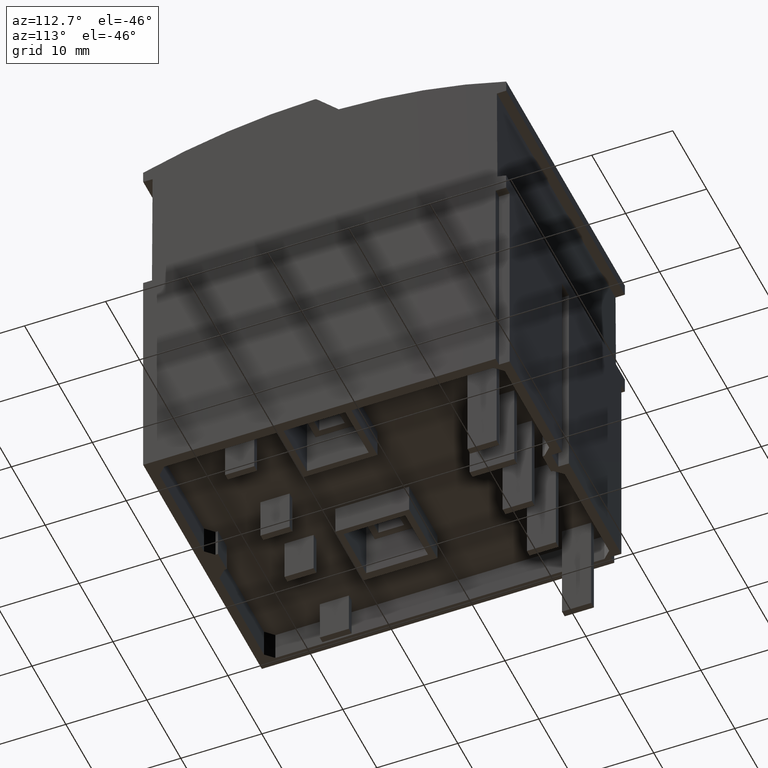
[diagram: clean part render]
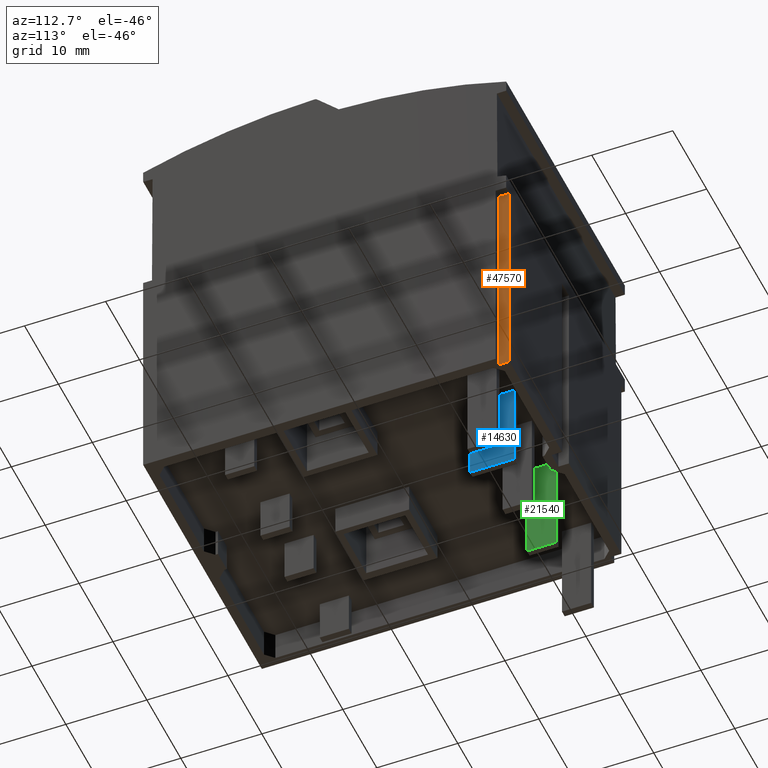
[diagram: same view with three faces highlighted in distinct colors, each labeled with its STEP entity id]
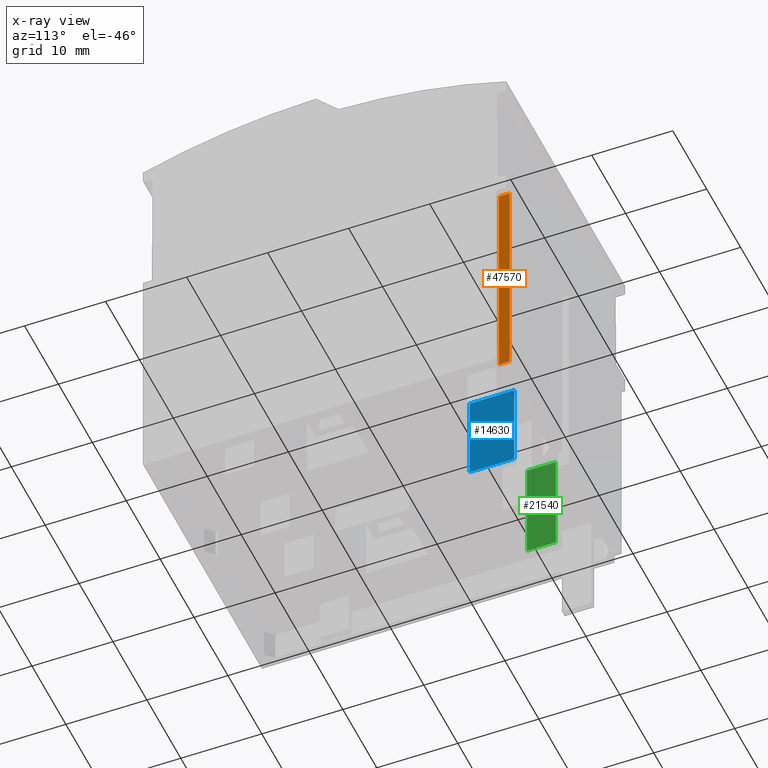
[diagram: x-ray of the same camera — body ghosted, the three highlighted faces saturated]
A machine part, auxiliary view with three faces highlighted in distinct colors.
The next image is the same camera in x-ray (body ghosted, the three faces saturated) — at least one of them is partly hidden behind the body in this view.
Their STEP definitions:

[orange] entity #47570 — the highlighted planar face has unit normal (-1, -0, 0).
#5850=CARTESIAN_POINT('',(117.520282034003,166.31959949414,
63.3022574288084));
#5860=VERTEX_POINT('',#5850);
#5890=CARTESIAN_POINT('',(172.088709993804,166.31959949414,
63.3022574288084));
#5900=DIRECTION('',(-1.,4.33680868994202E-19,-9.67121453329212E-17));
#5910=VECTOR('',#5900,1.);
#5920=LINE('',#5890,#5910);
#5930=CARTESIAN_POINT('',(116.220282034003,166.31959949414,
63.3022574288084));
#5940=VERTEX_POINT('',#5930);
#5950=EDGE_CURVE('',#5860,#5940,#5920,.T.);
#23200=CARTESIAN_POINT('',(117.520282034003,193.865880918265,
63.3022574288084));
#23210=VERTEX_POINT('',#23200);
#23290=CARTESIAN_POINT('',(116.220282034003,193.865880918265,
63.3022574288084));
#23300=VERTEX_POINT('',#23290);
#23330=CARTESIAN_POINT('',(208.361467938182,193.865880918265,
63.3022574288084));
#23340=DIRECTION('',(1.,1.20996962449382E-16,9.6821857765622E-17));
#23350=VECTOR('',#23340,1.);
#23360=LINE('',#23330,#23350);
#23370=EDGE_CURVE('',#23300,#23210,#23360,.T.);
#44140=CARTESIAN_POINT('',(116.220282034003,190.233947805097,
63.3022574288084));
#44150=DIRECTION('',(-1.20996962449382E-16,1.,-7.51460437040554E-19));
#44160=VECTOR('',#44150,1.);
#44170=LINE('',#44140,#44160);
#44180=EDGE_CURVE('',#5940,#23300,#44170,.T.);
#47410=CARTESIAN_POINT('',(116.420282034003,168.365880918265,
63.3022574288084));
#47420=DIRECTION('',(-9.6821857765622E-17,7.5144244505615E-19,1.));
#47430=DIRECTION('',(1.,1.20996962449382E-16,9.6821857765622E-17));
#47440=AXIS2_PLACEMENT_3D('',#47410,#47420,#47430);
#47450=PLANE('',#47440);
#47460=ORIENTED_EDGE('',*,*,#5950,.T.);
#47470=CARTESIAN_POINT('',(117.520282034003,190.238485679583,
63.3022574288084));
#47480=DIRECTION('',(1.20996962449382E-16,-1.,7.51460437040554E-19));
#47490=VECTOR('',#47480,1.);
#47500=LINE('',#47470,#47490);
#47510=EDGE_CURVE('',#23210,#5860,#47500,.T.);
#47520=ORIENTED_EDGE('',*,*,#47510,.T.);
#47530=ORIENTED_EDGE('',*,*,#23370,.T.);
#47540=ORIENTED_EDGE('',*,*,#44180,.T.);
#47550=EDGE_LOOP('',(#47540,#47530,#47520,#47460));
#47560=FACE_OUTER_BOUND('',#47550,.T.);
#47570=ADVANCED_FACE('',(#47560),#47450,.F.);

[blue] entity #14630 — the highlighted planar face has unit normal (1, 0, -0).
#6680=CARTESIAN_POINT('',(118.8910760667,170.065880918266,
71.0539719449946));
#6690=VERTEX_POINT('',#6680);
#6720=CARTESIAN_POINT('',(208.361467938182,170.065880918266,
71.0539719449946));
#6730=DIRECTION('',(-1.,-1.20996962449382E-16,-1.16201844070815E-20));
#6740=VECTOR('',#6730,1.);
#6750=LINE('',#6720,#6740);
#6760=CARTESIAN_POINT('',(124.3910760667,170.065880918266,
71.0539719449946));
#6770=VERTEX_POINT('',#6760);
#6780=EDGE_CURVE('',#6770,#6690,#6750,.T.);
#13530=CARTESIAN_POINT('',(124.3910760667,175.365880918266,
71.0539719449946));
#13540=DIRECTION('',(1.20996962449382E-16,-1.,7.51442445056162E-19));
#13550=VECTOR('',#13540,1.);
#13560=LINE('',#13530,#13550);
#13570=CARTESIAN_POINT('',(124.3910760667,158.815880918265,
71.0539719449946));
#13580=VERTEX_POINT('',#13570);
#13590=EDGE_CURVE('',#6770,#13580,#13560,.T.);
#13990=CARTESIAN_POINT('',(118.62348225202,158.815880918265,
71.0539719449946));
#14000=DIRECTION('',(1.,1.20996962449382E-16,1.16201844070815E-20));
#14010=VECTOR('',#14000,1.);
#14020=LINE('',#13990,#14010);
#14030=CARTESIAN_POINT('',(118.8910760667,158.815880918265,
71.0539719449946));
#14040=VERTEX_POINT('',#14030);
#14050=EDGE_CURVE('',#14040,#13580,#14020,.T.);
#14470=CARTESIAN_POINT('',(121.900880328534,169.237396051755,
71.0539719449946));
#14480=DIRECTION('',(1.16201844070816E-20,-7.51442445056162E-19,-1.));
#14490=DIRECTION('',(-1.,-1.20996962449382E-16,-1.16201844070815E-20));
#14500=AXIS2_PLACEMENT_3D('',#14470,#14480,#14490);
#14510=PLANE('',#14500);
#14520=ORIENTED_EDGE('',*,*,#6780,.F.);
#14530=CARTESIAN_POINT('',(118.8910760667,175.365880918266,
71.0539719449946));
#14540=DIRECTION('',(-1.20996962449382E-16,1.,-7.51442445056162E-19));
#14550=VECTOR('',#14540,1.);
#14560=LINE('',#14530,#14550);
#14570=EDGE_CURVE('',#14040,#6690,#14560,.T.);
#14580=ORIENTED_EDGE('',*,*,#14570,.T.);
#14590=ORIENTED_EDGE('',*,*,#14050,.F.);
#14600=ORIENTED_EDGE('',*,*,#13590,.T.);
#14610=EDGE_LOOP('',(#14600,#14590,#14580,#14520));
#14620=FACE_OUTER_BOUND('',#14610,.T.);
#14630=ADVANCED_FACE('',(#14620),#14510,.T.);

[green] entity #21540 — the highlighted planar face has unit normal (1, 0, -0).
#8360=CARTESIAN_POINT('',(118.8910760667,170.065880918266,
83.3540861758022));
#8370=VERTEX_POINT('',#8360);
#8420=CARTESIAN_POINT('',(208.361467938182,170.065880918266,
83.3540861758022));
#8430=DIRECTION('',(-1.,-1.20996962449382E-16,-1.22476300099142E-16));
#8440=VECTOR('',#8430,1.);
#8450=LINE('',#8420,#8440);
#8460=CARTESIAN_POINT('',(122.4910760667,170.065880918266,
83.3540861758022));
#8470=VERTEX_POINT('',#8460);
#8480=EDGE_CURVE('',#8470,#8370,#8450,.T.);
#20810=CARTESIAN_POINT('',(122.4910760667,156.915880918265,
83.3540861758022));
#20820=VERTEX_POINT('',#20810);
#20850=CARTESIAN_POINT('',(122.75866988138,156.915880918265,
83.3540861758022));
#20860=DIRECTION('',(1.,1.20996962449382E-16,1.22476300099142E-16));
#20870=VECTOR('',#20860,1.);
#20880=LINE('',#20850,#20870);
#20890=CARTESIAN_POINT('',(118.8910760667,156.915880918265,
83.3540861758022));
#20900=VERTEX_POINT('',#20890);
#20910=EDGE_CURVE('',#20900,#20820,#20880,.T.);
#21210=CARTESIAN_POINT('',(122.4910760667,176.065880918266,
83.3540861758022));
#21220=DIRECTION('',(-1.20996962449382E-16,1.,-7.51442445056162E-19));
#21230=VECTOR('',#21220,1.);
#21240=LINE('',#21210,#21230);
#21250=EDGE_CURVE('',#20820,#8470,#21240,.T.);
#21380=CARTESIAN_POINT('',(119.767755076176,173.24763946522,
83.3540861758022));
#21390=DIRECTION('',(1.22476300099142E-16,-7.51442445056147E-19,-1.));
#21400=DIRECTION('',(-1.,-1.20996962449382E-16,-1.22476300099142E-16));
#21410=AXIS2_PLACEMENT_3D('',#21380,#21390,#21400);
#21420=PLANE('',#21410);
#21430=CARTESIAN_POINT('',(118.8910760667,176.065880918266,
83.3540861758022));
#21440=DIRECTION('',(-1.20996962449382E-16,1.,-7.51442445056162E-19));
#21450=VECTOR('',#21440,1.);
#21460=LINE('',#21430,#21450);
#21470=EDGE_CURVE('',#20900,#8370,#21460,.T.);
#21480=ORIENTED_EDGE('',*,*,#21470,.T.);
#21490=ORIENTED_EDGE('',*,*,#20910,.F.);
#21500=ORIENTED_EDGE('',*,*,#21250,.F.);
#21510=ORIENTED_EDGE('',*,*,#8480,.F.);
#21520=EDGE_LOOP('',(#21510,#21500,#21490,#21480));
#21530=FACE_OUTER_BOUND('',#21520,.T.);
#21540=ADVANCED_FACE('',(#21530),#21420,.T.);